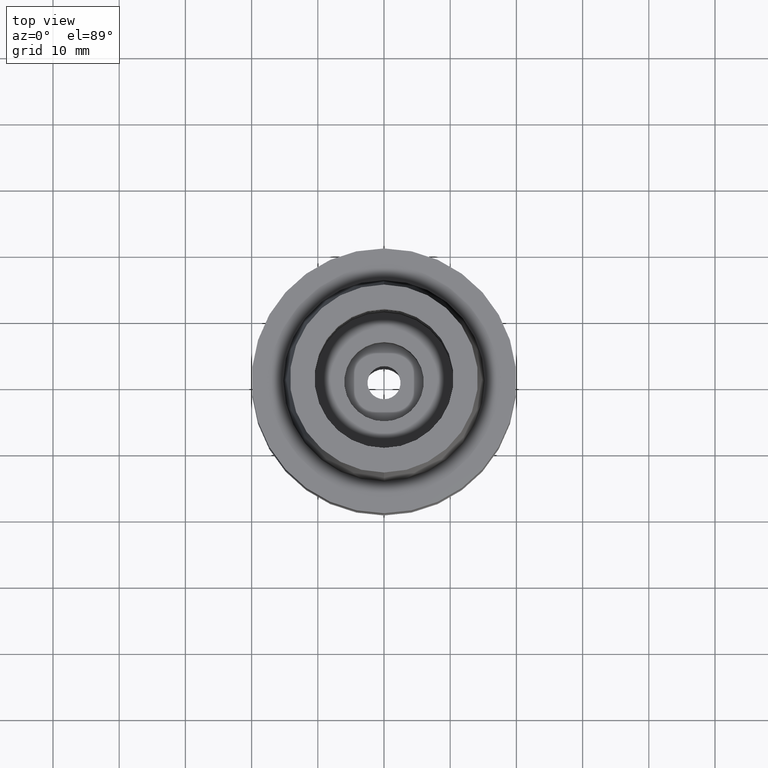
[diagram: clean part render]
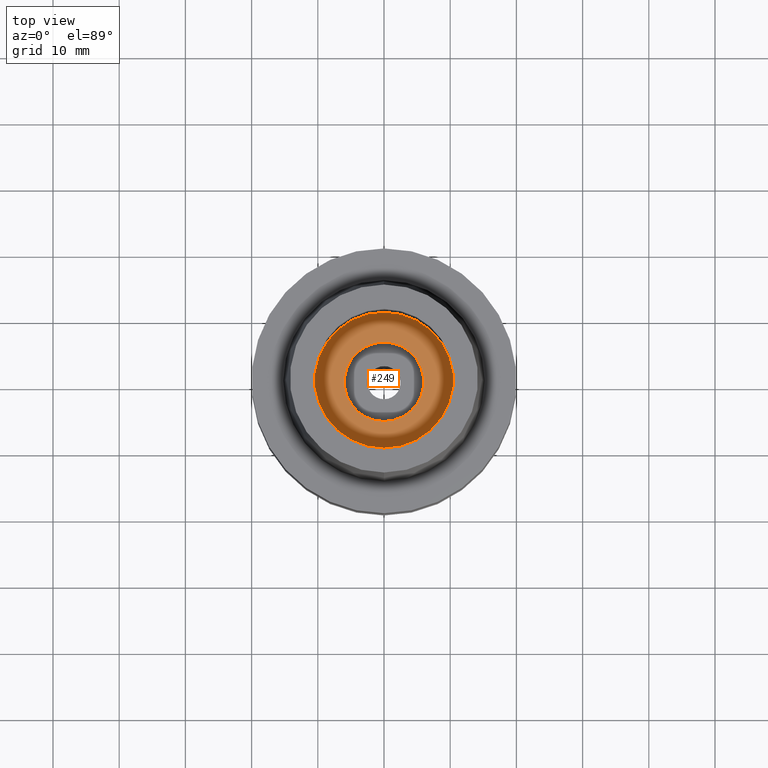
[diagram: same view with one face highlighted and labeled with its STEP entity id]
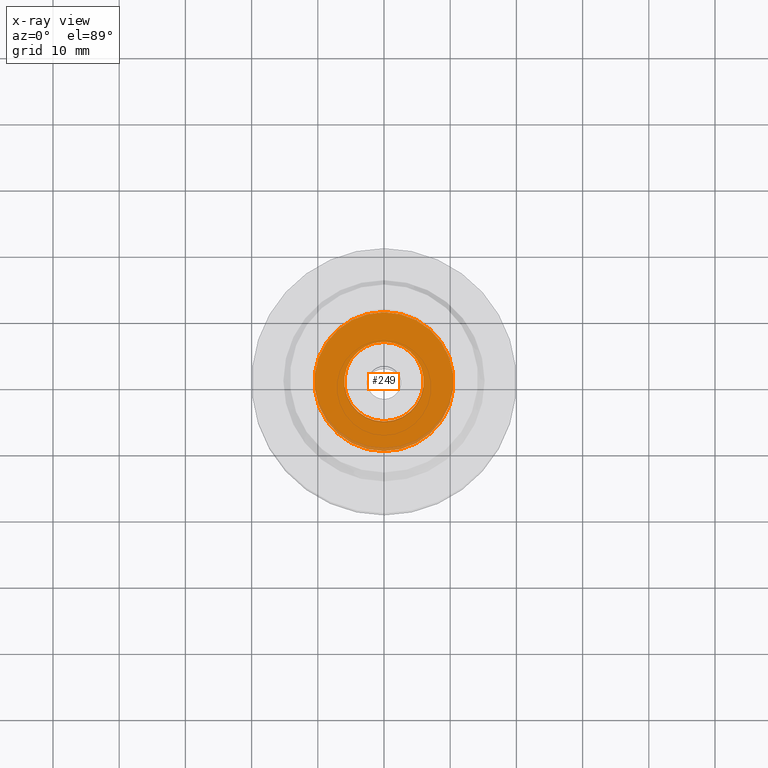
[diagram: x-ray of the same camera — body ghosted, the highlighted face saturated]
A machine part, top view. The second image highlights one B-rep face of the part: STEP entity #249.
The next image is the same camera in x-ray: the body ghosted, the highlighted face saturated — about 4% of this face is hidden behind the body in this view.
In plain terms, the highlighted planar face has unit normal (0, 0, 1).
Its self-contained STEP definition (entity closure, byte-faithful):
#107 = ORIENTED_EDGE ( 'NONE', *, *, #783, .F. ) ;
#152 = CARTESIAN_POINT ( 'NONE',  ( 0.0000000000000000000, 0.0000000000000000000, -7.950000000000000178 ) ) ;
#214 = CIRCLE ( 'NONE', #1379, 6.000000000000000000 ) ;
#249 = ADVANCED_FACE ( 'NONE', ( #2220, #1628 ), #1384, .T. ) ;
#256 = CARTESIAN_POINT ( 'NONE',  ( 0.0000000000000000000, 0.0000000000000000000, -7.950000000000000178 ) ) ;
#387 = CARTESIAN_POINT ( 'NONE',  ( 0.0000000000000000000, 0.0000000000000000000, -7.950000000000000178 ) ) ;
#479 = AXIS2_PLACEMENT_3D ( 'NONE', #1676, #820, #1231 ) ;
#496 = DIRECTION ( 'NONE',  ( 0.0000000000000000000, -1.000000000000000000, 0.0000000000000000000 ) ) ;
#707 = VERTEX_POINT ( 'NONE', #1779 ) ;
#783 = EDGE_CURVE ( 'NONE', #1040, #707, #1952, .T. ) ;
#820 = DIRECTION ( 'NONE',  ( 0.0000000000000000000, 0.0000000000000000000, 1.000000000000000000 ) ) ;
#878 = VERTEX_POINT ( 'NONE', #2187 ) ;
#978 = ORIENTED_EDGE ( 'NONE', *, *, #2684, .F. ) ;
#999 = DIRECTION ( 'NONE',  ( 0.0000000000000000000, 0.0000000000000000000, -1.000000000000000000 ) ) ;
#1040 = VERTEX_POINT ( 'NONE', #2342 ) ;
#1045 = ORIENTED_EDGE ( 'NONE', *, *, #2062, .F. ) ;
#1103 = CIRCLE ( 'NONE', #2401, 10.50000000000000000 ) ;
#1171 = CARTESIAN_POINT ( 'NONE',  ( 0.0000000000000000000, -10.50000000000000000, -7.950000000000000178 ) ) ;
#1225 = EDGE_LOOP ( 'NONE', ( #107, #1045 ) ) ;
#1227 = CARTESIAN_POINT ( 'NONE',  ( 0.0000000000000000000, 0.0000000000000000000, -7.950000000000000178 ) ) ;
#1231 = DIRECTION ( 'NONE',  ( 0.0000000000000000000, 1.000000000000000000, 0.0000000000000000000 ) ) ;
#1379 = AXIS2_PLACEMENT_3D ( 'NONE', #1227, #2462, #1595 ) ;
#1384 = PLANE ( 'NONE',  #1738 ) ;
#1566 = DIRECTION ( 'NONE',  ( 1.000000000000000000, 0.0000000000000000000, 0.0000000000000000000 ) ) ;
#1595 = DIRECTION ( 'NONE',  ( 0.0000000000000000000, -1.000000000000000000, 0.0000000000000000000 ) ) ;
#1628 = FACE_BOUND ( 'NONE', #1225, .T. ) ;
#1676 = CARTESIAN_POINT ( 'NONE',  ( 0.0000000000000000000, 0.0000000000000000000, -7.950000000000000178 ) ) ;
#1738 = AXIS2_PLACEMENT_3D ( 'NONE', #387, #1993, #1566 ) ;
#1779 = CARTESIAN_POINT ( 'NONE',  ( 0.0000000000000000000, -6.000000000000000000, -7.950000000000000178 ) ) ;
#1786 = EDGE_LOOP ( 'NONE', ( #978, #2224 ) ) ;
#1952 = CIRCLE ( 'NONE', #479, 6.000000000000000000 ) ;
#1993 = DIRECTION ( 'NONE',  ( 0.0000000000000000000, 0.0000000000000000000, 1.000000000000000000 ) ) ;
#2062 = EDGE_CURVE ( 'NONE', #707, #1040, #214, .T. ) ;
#2130 = CIRCLE ( 'NONE', #2530, 10.50000000000000000 ) ;
#2187 = CARTESIAN_POINT ( 'NONE',  ( 0.0000000000000000000, 10.50000000000000000, -7.950000000000000178 ) ) ;
#2220 = FACE_OUTER_BOUND ( 'NONE', #1786, .T. ) ;
#2224 = ORIENTED_EDGE ( 'NONE', *, *, #2368, .F. ) ;
#2342 = CARTESIAN_POINT ( 'NONE',  ( 0.0000000000000000000, 6.000000000000000000, -7.950000000000000178 ) ) ;
#2346 = DIRECTION ( 'NONE',  ( 0.0000000000000000000, 0.0000000000000000000, -1.000000000000000000 ) ) ;
#2368 = EDGE_CURVE ( 'NONE', #2583, #878, #1103, .T. ) ;
#2401 = AXIS2_PLACEMENT_3D ( 'NONE', #256, #2346, #496 ) ;
#2462 = DIRECTION ( 'NONE',  ( 0.0000000000000000000, 0.0000000000000000000, 1.000000000000000000 ) ) ;
#2530 = AXIS2_PLACEMENT_3D ( 'NONE', #152, #999, #2654 ) ;
#2583 = VERTEX_POINT ( 'NONE', #1171 ) ;
#2654 = DIRECTION ( 'NONE',  ( 0.0000000000000000000, 1.000000000000000000, 0.0000000000000000000 ) ) ;
#2684 = EDGE_CURVE ( 'NONE', #878, #2583, #2130, .T. ) ;